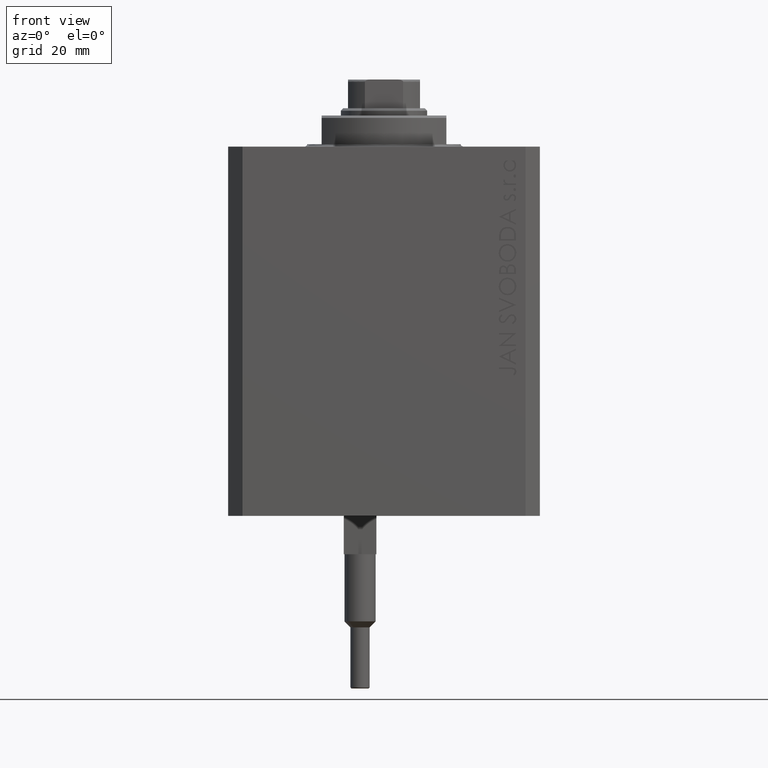
[diagram: clean part render]
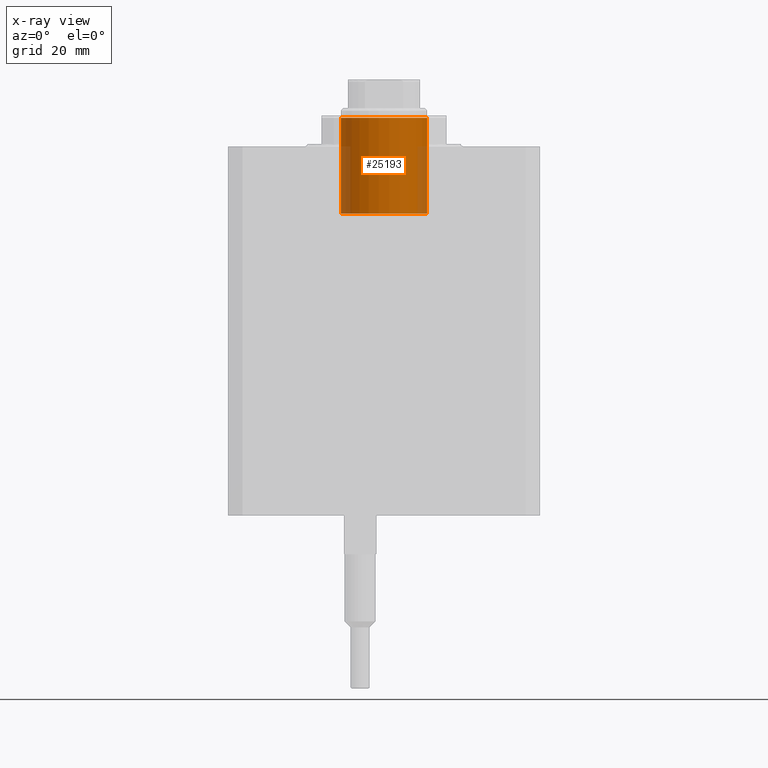
[diagram: x-ray — body ghosted, one internal face saturated and labeled with its STEP entity id]
A machine part, front view, then the same camera in x-ray: the body is ghosted and one INTERNAL B-rep face — a face not visible from any outside direction — is saturated and labeled: STEP entity #25193.
In plain terms, the highlighted cylindrical surface (partial cylindrical patch) has radius 9 mm, axis along (0, -0, 1).
Its self-contained STEP definition (entity closure, byte-faithful):
#388 = DIRECTION ( 'NONE',  ( 0.000000000000000000, 0.000000000000000000, -1.000000000000000000 ) ) ;
#1150 = DIRECTION ( 'NONE',  ( -1.000000000000000000, 0.000000000000000000, 0.000000000000000000 ) ) ;
#1379 = DIRECTION ( 'NONE',  ( -0.000000000000000000, -0.000000000000000000, -1.000000000000000000 ) ) ;
#2857 = DIRECTION ( 'NONE',  ( -1.000000000000000000, 0.000000000000000000, 0.000000000000000000 ) ) ;
#6084 = CARTESIAN_POINT ( 'NONE',  ( 9.000000000000000000, 1.102182119232617714E-15, 14.00000000000000178 ) ) ;
#6156 = VECTOR ( 'NONE', #15573, 1000.000000000000000 ) ;
#7238 = DIRECTION ( 'NONE',  ( 0.000000000000000000, 0.000000000000000000, -1.000000000000000000 ) ) ;
#7358 = VECTOR ( 'NONE', #1379, 1000.000000000000000 ) ;
#10265 = AXIS2_PLACEMENT_3D ( 'NONE', #21163, #7238, #2857 ) ;
#11523 = VERTEX_POINT ( 'NONE', #15565 ) ;
#13060 = VERTEX_POINT ( 'NONE', #33248 ) ;
#14504 = ORIENTED_EDGE ( 'NONE', *, *, #15224, .F. ) ;
#14578 = CARTESIAN_POINT ( 'NONE',  ( 0.000000000000000000, 0.000000000000000000, 14.00000000000000178 ) ) ;
#14881 = EDGE_CURVE ( 'NONE', #39674, #13060, #23622, .T. ) ;
#15224 = EDGE_CURVE ( 'NONE', #27031, #39674, #32688, .T. ) ;
#15565 = CARTESIAN_POINT ( 'NONE',  ( 9.000000000000000000, 1.102182119232617714E-15, -5.999999999999987566 ) ) ;
#15573 = DIRECTION ( 'NONE',  ( -0.000000000000000000, -0.000000000000000000, -1.000000000000000000 ) ) ;
#16559 = CARTESIAN_POINT ( 'NONE',  ( -9.000000000000000000, 0.000000000000000000, 14.00000000000000178 ) ) ;
#20254 = ORIENTED_EDGE ( 'NONE', *, *, #24360, .T. ) ;
#20649 = EDGE_LOOP ( 'NONE', ( #14504, #20254, #22196, #29502 ) ) ;
#21163 = CARTESIAN_POINT ( 'NONE',  ( 0.000000000000000000, 0.000000000000000000, -5.999999999999987566 ) ) ;
#22196 = ORIENTED_EDGE ( 'NONE', *, *, #29119, .T. ) ;
#23622 = LINE ( 'NONE', #45805, #6156 ) ;
#24360 = EDGE_CURVE ( 'NONE', #27031, #11523, #27255, .T. ) ;
#25193 = ADVANCED_FACE ( 'NONE', ( #33147 ), #48000, .F. ) ;
#27031 = VERTEX_POINT ( 'NONE', #6084 ) ;
#27212 = AXIS2_PLACEMENT_3D ( 'NONE', #37730, #388, #45034 ) ;
#27255 = LINE ( 'NONE', #46730, #7358 ) ;
#29119 = EDGE_CURVE ( 'NONE', #11523, #13060, #31333, .T. ) ;
#29498 = DIRECTION ( 'NONE',  ( -0.000000000000000000, -0.000000000000000000, -1.000000000000000000 ) ) ;
#29502 = ORIENTED_EDGE ( 'NONE', *, *, #14881, .F. ) ;
#31333 = CIRCLE ( 'NONE', #10265, 9.000000000000000000 ) ;
#32688 = CIRCLE ( 'NONE', #27212, 9.000000000000000000 ) ;
#33147 = FACE_OUTER_BOUND ( 'NONE', #20649, .T. ) ;
#33248 = CARTESIAN_POINT ( 'NONE',  ( -9.000000000000000000, 0.000000000000000000, -5.999999999999987566 ) ) ;
#35885 = AXIS2_PLACEMENT_3D ( 'NONE', #14578, #29498, #1150 ) ;
#37730 = CARTESIAN_POINT ( 'NONE',  ( 0.000000000000000000, 0.000000000000000000, 14.00000000000000178 ) ) ;
#39674 = VERTEX_POINT ( 'NONE', #16559 ) ;
#45034 = DIRECTION ( 'NONE',  ( -1.000000000000000000, 0.000000000000000000, 0.000000000000000000 ) ) ;
#45805 = CARTESIAN_POINT ( 'NONE',  ( -9.000000000000000000, 0.000000000000000000, 14.00000000000000178 ) ) ;
#46730 = CARTESIAN_POINT ( 'NONE',  ( 9.000000000000000000, 1.102182119232617714E-15, 14.00000000000000178 ) ) ;
#48000 = CYLINDRICAL_SURFACE ( 'NONE', #35885, 9.000000000000000000 ) ;